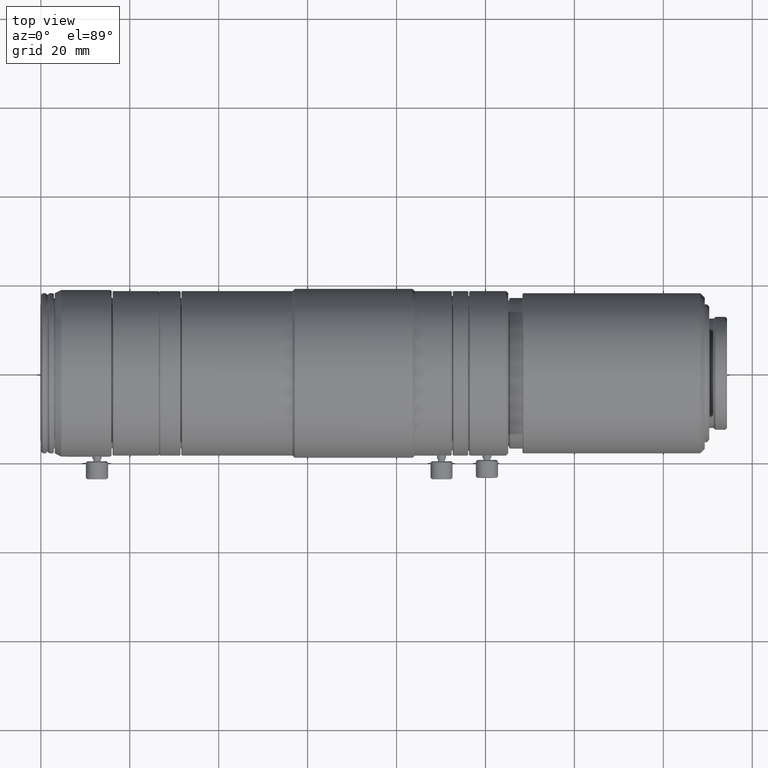
[diagram: clean part render]
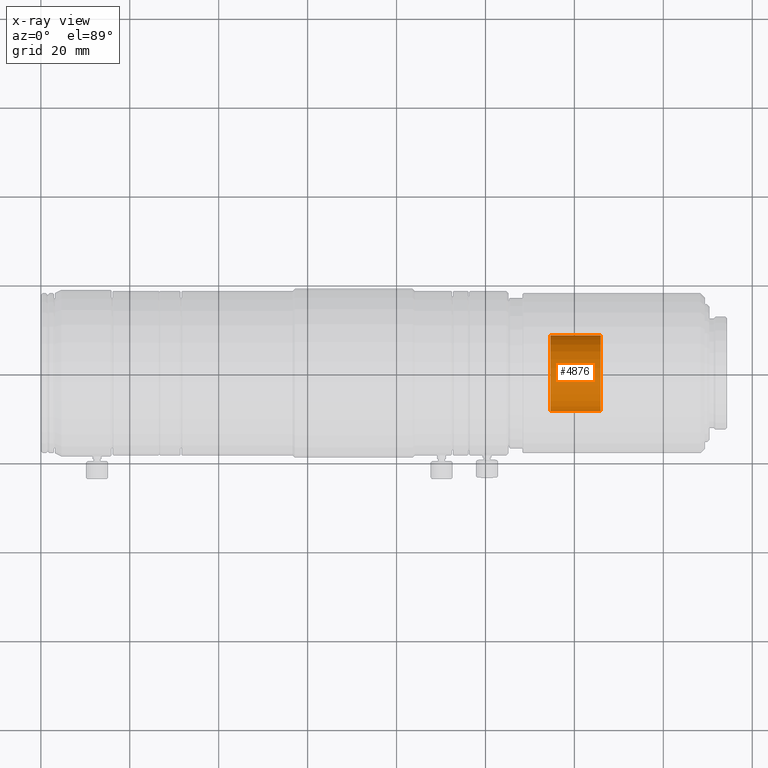
[diagram: x-ray — body ghosted, one internal face saturated and labeled with its STEP entity id]
A machine part, top view, then the same camera in x-ray: the body is ghosted and one INTERNAL B-rep face — a face not visible from any outside direction — is saturated and labeled: STEP entity #4876.
In plain terms, the highlighted cylindrical surface (partial cylindrical patch) has radius 8.5 mm, axis along (-1, -0, -0).
Its self-contained STEP definition (entity closure, byte-faithful):
#235 = AXIS2_PLACEMENT_3D ( 'NONE', #336, #6491, #3111 ) ;
#264 = EDGE_CURVE ( 'NONE', #7002, #4605, #5319, .T. ) ;
#336 = CARTESIAN_POINT ( 'NONE',  ( 8.060974633347335300, -9.399456682414691900E-015, 0.0000000000000000000 ) ) ;
#502 = CARTESIAN_POINT ( 'NONE',  ( 125.9309746333472900, 8.500000000000655500, 1.040949779275265900E-015 ) ) ;
#507 = DIRECTION ( 'NONE',  ( -1.000000000000000000, -4.558507189758049000E-015, -0.0000000000000000000 ) ) ;
#592 = EDGE_CURVE ( 'NONE', #6001, #4605, #6008, .T. ) ;
#1082 = CARTESIAN_POINT ( 'NONE',  ( 114.6309746333472600, 8.500000000000602200, 1.040949779275265500E-015 ) ) ;
#1172 = CARTESIAN_POINT ( 'NONE',  ( 8.060974633347296200, 8.500000000000113700, 1.040949779275265300E-015 ) ) ;
#1361 = VERTEX_POINT ( 'NONE', #4699 ) ;
#1529 = VECTOR ( 'NONE', #5149, 1000.000000000000000 ) ;
#1582 = VECTOR ( 'NONE', #4774, 1000.000000000000000 ) ;
#1764 = CARTESIAN_POINT ( 'NONE',  ( 114.6309746333473500, -8.499999999999648300, 0.0000000000000000000 ) ) ;
#2000 = CIRCLE ( 'NONE', #6243, 8.500000000000117200 ) ;
#2353 = ORIENTED_EDGE ( 'NONE', *, *, #2729, .F. ) ;
#2502 = CARTESIAN_POINT ( 'NONE',  ( 8.060974633347372600, -8.500000000000131500, 0.0000000000000000000 ) ) ;
#2729 = EDGE_CURVE ( 'NONE', #1361, #7002, #5723, .T. ) ;
#3111 = DIRECTION ( 'NONE',  ( 4.489872526057553300E-015, -1.000000000000000000, 0.0000000000000000000 ) ) ;
#3748 = EDGE_LOOP ( 'NONE', ( #4594, #4556, #4148, #2353 ) ) ;
#3860 = CARTESIAN_POINT ( 'NONE',  ( 125.9309746333473200, 5.279117857743663800E-013, 0.0000000000000000000 ) ) ;
#4148 = ORIENTED_EDGE ( 'NONE', *, *, #264, .F. ) ;
#4274 = DIRECTION ( 'NONE',  ( 4.898042755699147400E-015, -1.000000000000000000, 0.0000000000000000000 ) ) ;
#4433 = DIRECTION ( 'NONE',  ( 3.265361837132768200E-015, -1.000000000000000000, 0.0000000000000000000 ) ) ;
#4556 = ORIENTED_EDGE ( 'NONE', *, *, #592, .T. ) ;
#4594 = ORIENTED_EDGE ( 'NONE', *, *, #5011, .T. ) ;
#4605 = VERTEX_POINT ( 'NONE', #1082 ) ;
#4699 = CARTESIAN_POINT ( 'NONE',  ( 125.9309746333473500, -8.499999999999580800, 0.0000000000000000000 ) ) ;
#4774 = DIRECTION ( 'NONE',  ( -1.000000000000000000, -4.558507189758049000E-015, -0.0000000000000000000 ) ) ;
#4876 = ADVANCED_FACE ( 'NONE', ( #5521 ), #5470, .T. ) ;
#5011 = EDGE_CURVE ( 'NONE', #1361, #6001, #2000, .T. ) ;
#5149 = DIRECTION ( 'NONE',  ( -1.000000000000000000, -4.558507189758049000E-015, -0.0000000000000000000 ) ) ;
#5319 = CIRCLE ( 'NONE', #5388, 8.500000000000126100 ) ;
#5388 = AXIS2_PLACEMENT_3D ( 'NONE', #6370, #5947, #4274 ) ;
#5470 = CYLINDRICAL_SURFACE ( 'NONE', #235, 8.500000000000122600 ) ;
#5521 = FACE_OUTER_BOUND ( 'NONE', #3748, .T. ) ;
#5723 = LINE ( 'NONE', #2502, #1582 ) ;
#5947 = DIRECTION ( 'NONE',  ( -1.000000000000000000, -4.558507189758049000E-015, -0.0000000000000000000 ) ) ;
#6001 = VERTEX_POINT ( 'NONE', #502 ) ;
#6008 = LINE ( 'NONE', #1172, #1529 ) ;
#6243 = AXIS2_PLACEMENT_3D ( 'NONE', #3860, #507, #4433 ) ;
#6370 = CARTESIAN_POINT ( 'NONE',  ( 114.6309746333473100, 4.764006545301004100E-013, 0.0000000000000000000 ) ) ;
#6491 = DIRECTION ( 'NONE',  ( -1.000000000000000000, -4.558507189758049000E-015, -0.0000000000000000000 ) ) ;
#7002 = VERTEX_POINT ( 'NONE', #1764 ) ;